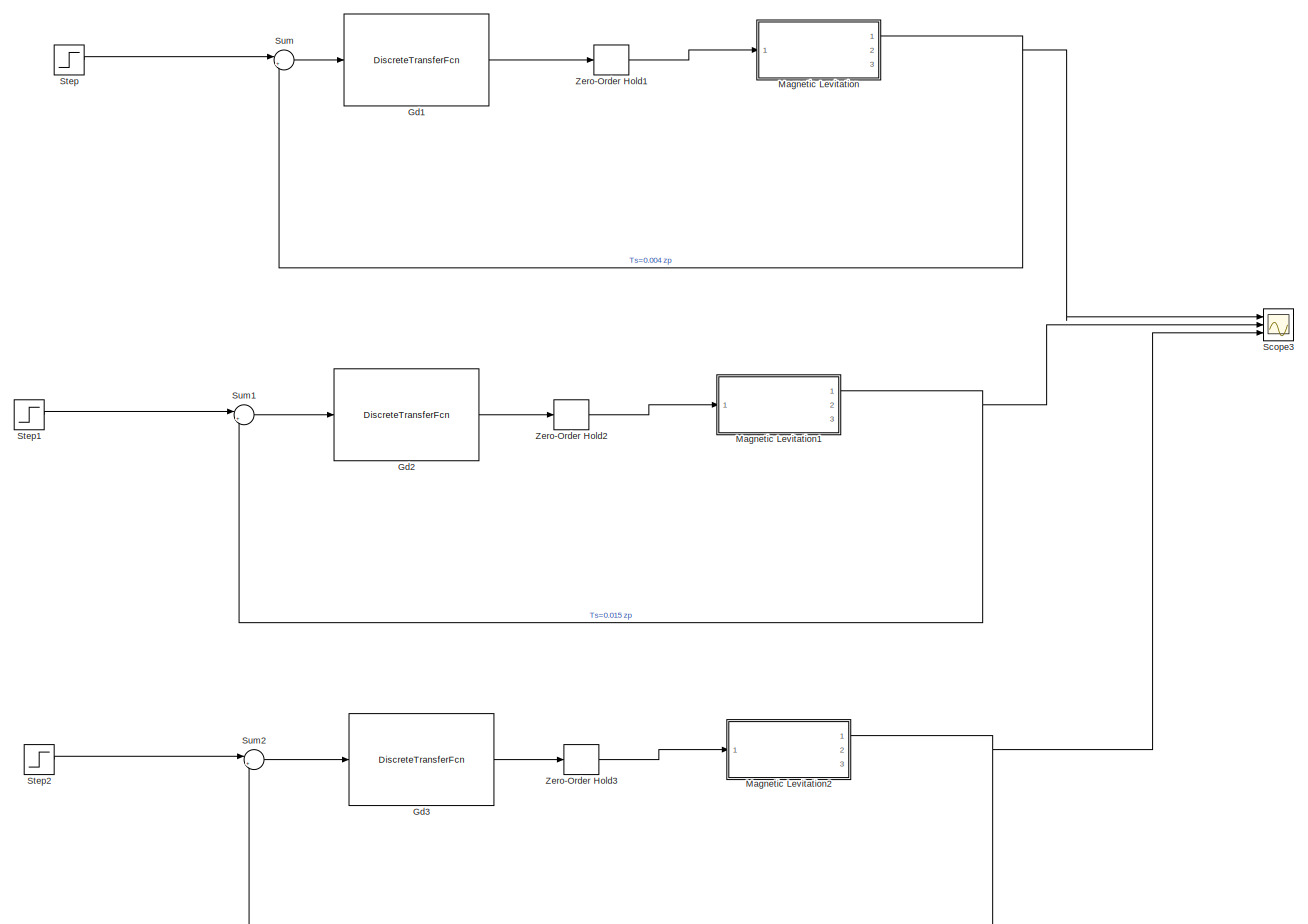
[diagram: root canvas - part 1/2, most of the canvas]
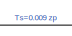
[diagram: root canvas - part 2/2, bottom center region]
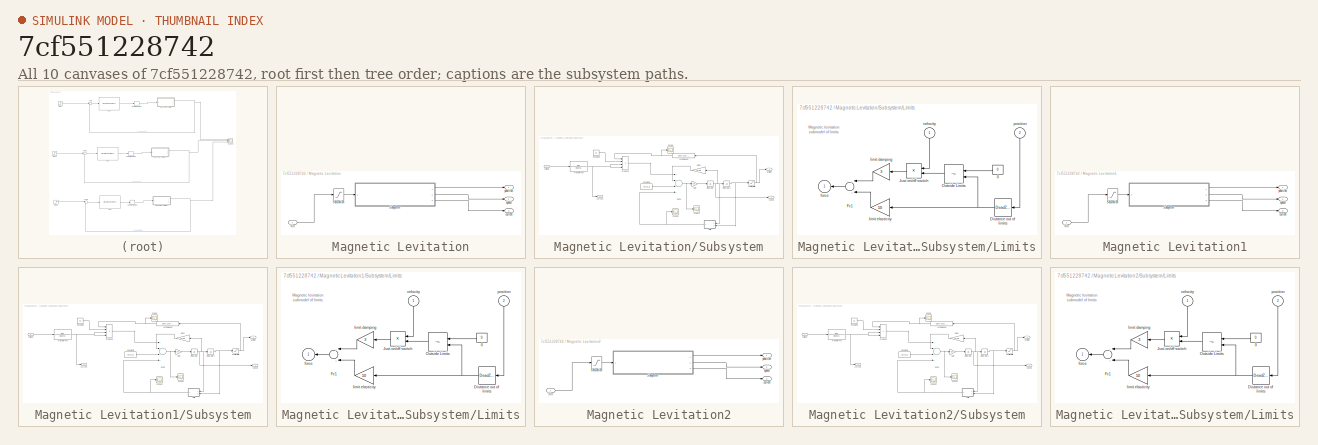
[diagram: thumbnail index - all 10 canvases of the model, root first then tree order]
MODEL slx_7cf551228742
KIND model
CONFIG AbsTol = 1e-5
CONFIG EnableMultiTasking = off
CONFIG FixedStep = 1e-3
CONFIG MaxStep = 0.001
CONFIG MinStep = auto
CONFIG RelTol = 1e-3
CONFIG SampleTimeConstraint = Unconstrained
CONFIG Solver = ode5
CONFIG SolverName = ode5
CONFIG StartTime = 0.0
CONFIG StopTime = 5
WORKSPACE source: MATLAB code (in-file)
WORKSPACE Ts = 1e-3  (= 0.001)
BLOCK [DiscreteTransferFcn]  Gd1
  Denominator = [1 -1 0.0003355]
  InputPortMap = u0
  Numerator = [5775 -1.136e04 5587]
  Ports = [1, 1]
  SampleTime = 0.004
BLOCK [DiscreteTransferFcn]  Gd2
  Denominator = [1 -1 9.358e-14]
  InputPortMap = u0
  Numerator = [1612 -3031 1424]
  Ports = [1, 1]
  SampleTime = 0.015
BLOCK [DiscreteTransferFcn]  Gd3
  Denominator = [1 -1 1.523e-08]
  InputPortMap = u0
  Numerator = [2621 -5051 2433]
  Ports = [1, 1]
  SampleTime = 0.009
BLOCK [SubSystem] Magnetic Levitation
  Ports = [1, 3]
  RequestExecContextInheritance = off
  Variant = off
BLOCK [Saturate] Magnetic Levitation/Saturation
  InputPortMap = u0
  LowerLimit = 0
  Ports = [1, 1]
  UpperLimit = 10
  ZeroCross = off
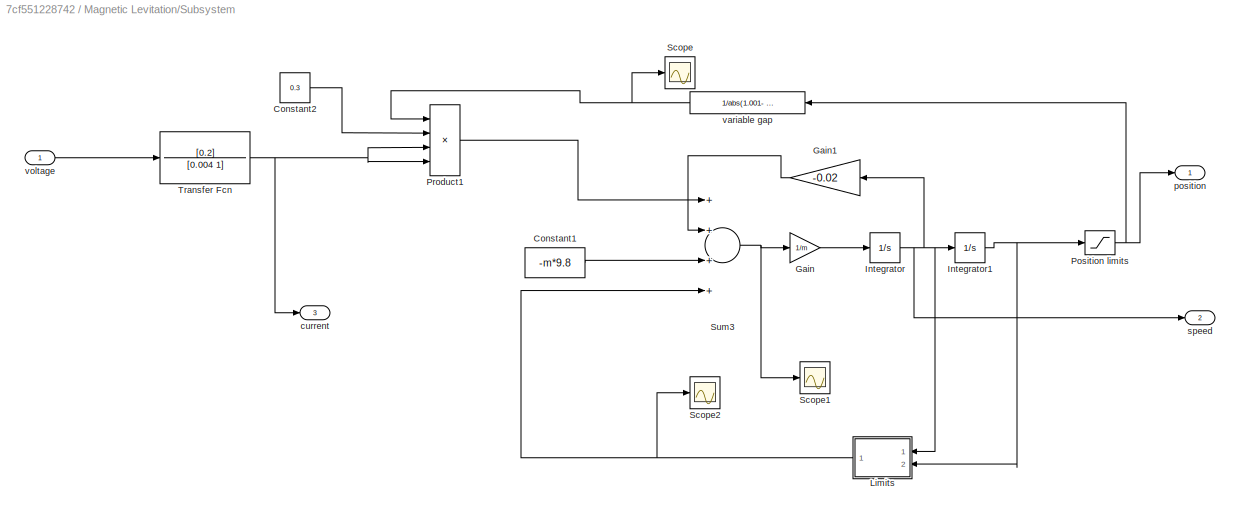
BLOCK [SubSystem] Magnetic Levitation/Subsystem
  Ports = [1, 3]
  RequestExecContextInheritance = off
  Variant = off
BLOCK [Constant] Magnetic Levitation/Subsystem/Constant1
  Value = -m*9.8
BLOCK [Constant] Magnetic Levitation/Subsystem/Constant2
  Value = 0.3
BLOCK [Gain] Magnetic Levitation/Subsystem/Gain
  Gain = 1/m
  OutDataTypeStr = Inherit: Inherit via internal rule
  ParamDataTypeStr = Inherit: Inherit via internal rule
  SaturateOnIntegerOverflow = off
BLOCK [Gain] Magnetic Levitation/Subsystem/Gain1
  Gain = -0.02
  OutDataTypeStr = Inherit: Inherit via internal rule
  ParamDataTypeStr = Inherit: Inherit via internal rule
  SaturateOnIntegerOverflow = off
BLOCK [Integrator] Magnetic Levitation/Subsystem/Integrator
  Ports = [1, 1]
BLOCK [Integrator] Magnetic Levitation/Subsystem/Integrator1
  LimitOutput = on
  LowerSaturationLimit = 0
  Ports = [1, 1]
  UpperSaturationLimit = 1
BLOCK [SubSystem] Magnetic Levitation/Subsystem/Limits
  Ports = [2, 1]
  RequestExecContextInheritance = off
  ShowPortLabels = none
  Variant = off
BLOCK [Constant] Magnetic Levitation/Subsystem/Limits/0
  Value = 0
BLOCK [DeadZone] Magnetic Levitation/Subsystem/Limits/Distance out of limits
  LowerValue = 0.002
  UpperValue = 1
  ZeroCross = off
BLOCK [Sum] Magnetic Levitation/Subsystem/Limits/Fc1
  Inputs = --
  Ports = [2, 1]
BLOCK [Product] Magnetic Levitation/Subsystem/Limits/Just on//off switch 
  Ports = [2, 1]
  RndMeth = Floor
BLOCK [RelationalOperator] Magnetic Levitation/Subsystem/Limits/Outside Limits
  Operator = ~=
  Ports = [2, 1]
BLOCK [Outport] Magnetic Levitation/Subsystem/Limits/force
  IconDisplay = Port number
BLOCK [Gain] Magnetic Levitation/Subsystem/Limits/limit damping
  Gain = 3
BLOCK [Gain] Magnetic Levitation/Subsystem/Limits/limit elasticity
  Gain = 10
BLOCK [Inport] Magnetic Levitation/Subsystem/Limits/position
  IconDisplay = Port number
  Port = 2
BLOCK [Inport] Magnetic Levitation/Subsystem/Limits/velocity
  IconDisplay = Port number
BLOCK [Saturate] Magnetic Levitation/Subsystem/Position limits
  InputPortMap = u0
  LowerLimit = 0.001
  Ports = [1, 1]
  UpperLimit = 0.998
  ZeroCross = off
BLOCK [Product] Magnetic Levitation/Subsystem/Product1
  InputSameDT = off
  Inputs = 4
  OutDataTypeStr = Inherit: Inherit via internal rule
  Ports = [4, 1]
  RndMeth = Floor
  SaturateOnIntegerOverflow = off
BLOCK [Scope] Magnetic Levitation/Subsystem/Scope
  NumInputPorts = 1
  Ports = [1]
  ScopeSpecificationString = Simulink.scopes.TimeScopeBlockCfg('CurrentConfiguration', extmgr.ConfigurationSet(extmgr.Configuration('Core','General UI',true),extmgr.Configuration('Core','Source UI',true),extmgr.Configuration('Sources','WiredSimulink',true,'DataLoggingVariableName','ScopeData1'),extmgr.Configuration('Visuals','Time Domain',true,'SerializedDisplays',{struct('MinYLimReal','-40.54054','MaxYLimReal','374.87487','Y...<+1381ch>  <repeated x3 — deduplicated; at blocks: Scope>
BLOCK [Scope] Magnetic Levitation/Subsystem/Scope1
  NumInputPorts = 1
  Ports = [1]
  ScopeSpecificationString = Simulink.scopes.TimeScopeBlockCfg('CurrentConfiguration', extmgr.ConfigurationSet(extmgr.Configuration('Core','General UI',true),extmgr.Configuration('Core','Source UI',true),extmgr.Configuration('Sources','WiredSimulink',true,'DataLoggingVariableName','ScopeData2'),extmgr.Configuration('Visuals','Time Domain',true,'SerializedDisplays',{struct('MinYLimReal','-21376391083219120442781708779858395089...<+3841ch>  <repeated x3 — deduplicated; at blocks: Scope1>
BLOCK [Scope] Magnetic Levitation/Subsystem/Scope2
  NumInputPorts = 1
  Ports = [1]
  ScopeSpecificationString = Simulink.scopes.TimeScopeBlockCfg('CurrentConfiguration', extmgr.ConfigurationSet(extmgr.Configuration('Core','General UI',true),extmgr.Configuration('Core','Source UI',true),extmgr.Configuration('Sources','WiredSimulink',true,'DataLoggingVariableName','ScopeData3'),extmgr.Configuration('Visuals','Time Domain',true,'SerializedDisplays',{struct('MinYLimReal','-0.1107','MaxYLimReal','1.19629','YLabe...<+1363ch>  <repeated x3 — deduplicated; at blocks: Scope2>
BLOCK [Sum] Magnetic Levitation/Subsystem/Sum3
  InputSameDT = off
  Inputs = ++++
  OutDataTypeStr = Inherit: Inherit via internal rule
  Ports = [4, 1]
  SaturateOnIntegerOverflow = off
BLOCK [TransferFcn] Magnetic Levitation/Subsystem/Transfer Fcn
  Denominator = [0.004 1]
  Numerator = [0.2]
BLOCK [Outport] Magnetic Levitation/Subsystem/current
  IconDisplay = Port number
  Port = 3
BLOCK [Outport] Magnetic Levitation/Subsystem/position 
  IconDisplay = Port number
BLOCK [Outport] Magnetic Levitation/Subsystem/speed
  IconDisplay = Port number
  Port = 2
BLOCK [Fcn] Magnetic Levitation/Subsystem/variable gap
  Expr = 1/abs(1.001- u)
BLOCK [Inport] Magnetic Levitation/Subsystem/voltage
  IconDisplay = Port number
BLOCK [Inport] Magnetic Levitation/Vin
  IconDisplay = Port number
BLOCK [Outport] Magnetic Levitation/current
  IconDisplay = Port number
  Port = 3
BLOCK [Outport] Magnetic Levitation/position
  IconDisplay = Port number
BLOCK [Outport] Magnetic Levitation/speed
  IconDisplay = Port number
  Port = 2
BLOCK [SubSystem] Magnetic Levitation1
  Ports = [1, 3]
  RequestExecContextInheritance = off
  Variant = off
BLOCK [Saturate] Magnetic Levitation1/Saturation
  InputPortMap = u0
  LowerLimit = 0
  Ports = [1, 1]
  UpperLimit = 10
  ZeroCross = off
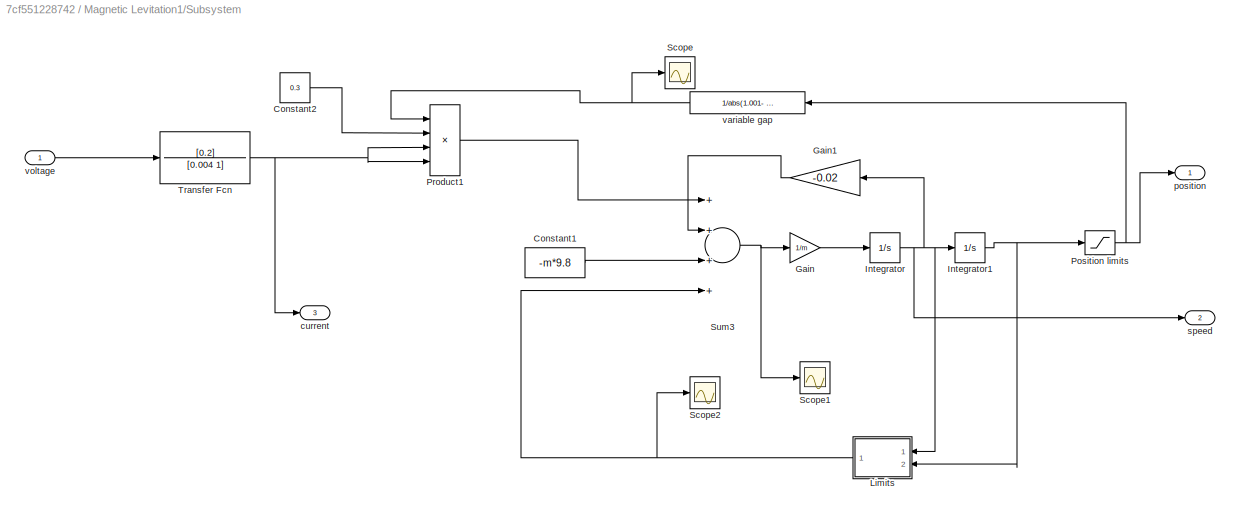
BLOCK [SubSystem] Magnetic Levitation1/Subsystem
  Ports = [1, 3]
  RequestExecContextInheritance = off
  Variant = off
BLOCK [Constant] Magnetic Levitation1/Subsystem/Constant1
  Value = -m*9.8
BLOCK [Constant] Magnetic Levitation1/Subsystem/Constant2
  Value = 0.3
BLOCK [Gain] Magnetic Levitation1/Subsystem/Gain
  Gain = 1/m
  OutDataTypeStr = Inherit: Inherit via internal rule
  ParamDataTypeStr = Inherit: Inherit via internal rule
  SaturateOnIntegerOverflow = off
BLOCK [Gain] Magnetic Levitation1/Subsystem/Gain1
  Gain = -0.02
  OutDataTypeStr = Inherit: Inherit via internal rule
  ParamDataTypeStr = Inherit: Inherit via internal rule
  SaturateOnIntegerOverflow = off
BLOCK [Integrator] Magnetic Levitation1/Subsystem/Integrator
  Ports = [1, 1]
BLOCK [Integrator] Magnetic Levitation1/Subsystem/Integrator1
  LimitOutput = on
  LowerSaturationLimit = 0
  Ports = [1, 1]
  UpperSaturationLimit = 1
BLOCK [SubSystem] Magnetic Levitation1/Subsystem/Limits
  Ports = [2, 1]
  RequestExecContextInheritance = off
  ShowPortLabels = none
  Variant = off
BLOCK [Constant] Magnetic Levitation1/Subsystem/Limits/0
  Value = 0
BLOCK [DeadZone] Magnetic Levitation1/Subsystem/Limits/Distance out of limits
  LowerValue = 0.002
  UpperValue = 1
  ZeroCross = off
BLOCK [Sum] Magnetic Levitation1/Subsystem/Limits/Fc1
  Inputs = --
  Ports = [2, 1]
BLOCK [Product] Magnetic Levitation1/Subsystem/Limits/Just on//off switch 
  Ports = [2, 1]
  RndMeth = Floor
BLOCK [RelationalOperator] Magnetic Levitation1/Subsystem/Limits/Outside Limits
  Operator = ~=
  Ports = [2, 1]
BLOCK [Outport] Magnetic Levitation1/Subsystem/Limits/force
  IconDisplay = Port number
BLOCK [Gain] Magnetic Levitation1/Subsystem/Limits/limit damping
  Gain = 3
BLOCK [Gain] Magnetic Levitation1/Subsystem/Limits/limit elasticity
  Gain = 10
BLOCK [Inport] Magnetic Levitation1/Subsystem/Limits/position
  IconDisplay = Port number
  Port = 2
BLOCK [Inport] Magnetic Levitation1/Subsystem/Limits/velocity
  IconDisplay = Port number
BLOCK [Saturate] Magnetic Levitation1/Subsystem/Position limits
  InputPortMap = u0
  LowerLimit = 0.001
  Ports = [1, 1]
  UpperLimit = 0.998
  ZeroCross = off
BLOCK [Product] Magnetic Levitation1/Subsystem/Product1
  InputSameDT = off
  Inputs = 4
  OutDataTypeStr = Inherit: Inherit via internal rule
  Ports = [4, 1]
  RndMeth = Floor
  SaturateOnIntegerOverflow = off
BLOCK [Scope] Magnetic Levitation1/Subsystem/Scope
  NumInputPorts = 1
  Ports = [1]
BLOCK [Scope] Magnetic Levitation1/Subsystem/Scope1
  NumInputPorts = 1
  Ports = [1]
BLOCK [Scope] Magnetic Levitation1/Subsystem/Scope2
  NumInputPorts = 1
  Ports = [1]
BLOCK [Sum] Magnetic Levitation1/Subsystem/Sum3
  InputSameDT = off
  Inputs = ++++
  OutDataTypeStr = Inherit: Inherit via internal rule
  Ports = [4, 1]
  SaturateOnIntegerOverflow = off
BLOCK [TransferFcn] Magnetic Levitation1/Subsystem/Transfer Fcn
  Denominator = [0.004 1]
  Numerator = [0.2]
BLOCK [Outport] Magnetic Levitation1/Subsystem/current
  IconDisplay = Port number
  Port = 3
BLOCK [Outport] Magnetic Levitation1/Subsystem/position 
  IconDisplay = Port number
BLOCK [Outport] Magnetic Levitation1/Subsystem/speed
  IconDisplay = Port number
  Port = 2
BLOCK [Fcn] Magnetic Levitation1/Subsystem/variable gap
  Expr = 1/abs(1.001- u)
BLOCK [Inport] Magnetic Levitation1/Subsystem/voltage
  IconDisplay = Port number
BLOCK [Inport] Magnetic Levitation1/Vin
  IconDisplay = Port number
BLOCK [Outport] Magnetic Levitation1/current
  IconDisplay = Port number
  Port = 3
BLOCK [Outport] Magnetic Levitation1/position
  IconDisplay = Port number
BLOCK [Outport] Magnetic Levitation1/speed
  IconDisplay = Port number
  Port = 2
BLOCK [SubSystem] Magnetic Levitation2
  Ports = [1, 3]
  RequestExecContextInheritance = off
  Variant = off
BLOCK [Saturate] Magnetic Levitation2/Saturation
  InputPortMap = u0
  LowerLimit = 0
  Ports = [1, 1]
  UpperLimit = 10
  ZeroCross = off
BLOCK [SubSystem] Magnetic Levitation2/Subsystem
  Ports = [1, 3]
  RequestExecContextInheritance = off
  Variant = off
BLOCK [Constant] Magnetic Levitation2/Subsystem/Constant1
  Value = -m*9.8
BLOCK [Constant] Magnetic Levitation2/Subsystem/Constant2
  Value = 0.3
BLOCK [Gain] Magnetic Levitation2/Subsystem/Gain
  Gain = 1/m
  OutDataTypeStr = Inherit: Inherit via internal rule
  ParamDataTypeStr = Inherit: Inherit via internal rule
  SaturateOnIntegerOverflow = off
BLOCK [Gain] Magnetic Levitation2/Subsystem/Gain1
  Gain = -0.02
  OutDataTypeStr = Inherit: Inherit via internal rule
  ParamDataTypeStr = Inherit: Inherit via internal rule
  SaturateOnIntegerOverflow = off
BLOCK [Integrator] Magnetic Levitation2/Subsystem/Integrator
  Ports = [1, 1]
BLOCK [Integrator] Magnetic Levitation2/Subsystem/Integrator1
  LimitOutput = on
  LowerSaturationLimit = 0
  Ports = [1, 1]
  UpperSaturationLimit = 1
BLOCK [SubSystem] Magnetic Levitation2/Subsystem/Limits
  Ports = [2, 1]
  RequestExecContextInheritance = off
  ShowPortLabels = none
  Variant = off
BLOCK [Constant] Magnetic Levitation2/Subsystem/Limits/0
  Value = 0
BLOCK [DeadZone] Magnetic Levitation2/Subsystem/Limits/Distance out of limits
  LowerValue = 0.002
  UpperValue = 1
  ZeroCross = off
BLOCK [Sum] Magnetic Levitation2/Subsystem/Limits/Fc1
  Inputs = --
  Ports = [2, 1]
BLOCK [Product] Magnetic Levitation2/Subsystem/Limits/Just on//off switch 
  Ports = [2, 1]
  RndMeth = Floor
BLOCK [RelationalOperator] Magnetic Levitation2/Subsystem/Limits/Outside Limits
  Operator = ~=
  Ports = [2, 1]
BLOCK [Outport] Magnetic Levitation2/Subsystem/Limits/force
  IconDisplay = Port number
BLOCK [Gain] Magnetic Levitation2/Subsystem/Limits/limit damping
  Gain = 3
BLOCK [Gain] Magnetic Levitation2/Subsystem/Limits/limit elasticity
  Gain = 10
BLOCK [Inport] Magnetic Levitation2/Subsystem/Limits/position
  IconDisplay = Port number
  Port = 2
BLOCK [Inport] Magnetic Levitation2/Subsystem/Limits/velocity
  IconDisplay = Port number
BLOCK [Saturate] Magnetic Levitation2/Subsystem/Position limits
  InputPortMap = u0
  LowerLimit = 0.001
  Ports = [1, 1]
  UpperLimit = 0.998
  ZeroCross = off
BLOCK [Product] Magnetic Levitation2/Subsystem/Product1
  InputSameDT = off
  Inputs = 4
  OutDataTypeStr = Inherit: Inherit via internal rule
  Ports = [4, 1]
  RndMeth = Floor
  SaturateOnIntegerOverflow = off
BLOCK [Scope] Magnetic Levitation2/Subsystem/Scope
  NumInputPorts = 1
  Ports = [1]
BLOCK [Scope] Magnetic Levitation2/Subsystem/Scope1
  NumInputPorts = 1
  Ports = [1]
BLOCK [Scope] Magnetic Levitation2/Subsystem/Scope2
  NumInputPorts = 1
  Ports = [1]
BLOCK [Sum] Magnetic Levitation2/Subsystem/Sum3
  InputSameDT = off
  Inputs = ++++
  OutDataTypeStr = Inherit: Inherit via internal rule
  Ports = [4, 1]
  SaturateOnIntegerOverflow = off
BLOCK [TransferFcn] Magnetic Levitation2/Subsystem/Transfer Fcn
  Denominator = [0.004 1]
  Numerator = [0.2]
BLOCK [Outport] Magnetic Levitation2/Subsystem/current
  IconDisplay = Port number
  Port = 3
BLOCK [Outport] Magnetic Levitation2/Subsystem/position 
  IconDisplay = Port number
BLOCK [Outport] Magnetic Levitation2/Subsystem/speed
  IconDisplay = Port number
  Port = 2
BLOCK [Fcn] Magnetic Levitation2/Subsystem/variable gap
  Expr = 1/abs(1.001- u)
BLOCK [Inport] Magnetic Levitation2/Subsystem/voltage
  IconDisplay = Port number
BLOCK [Inport] Magnetic Levitation2/Vin
  IconDisplay = Port number
BLOCK [Outport] Magnetic Levitation2/current
  IconDisplay = Port number
  Port = 3
BLOCK [Outport] Magnetic Levitation2/position
  IconDisplay = Port number
BLOCK [Outport] Magnetic Levitation2/speed
  IconDisplay = Port number
  Port = 2
BLOCK [Scope] Scope3
  NumInputPorts = 3
  Ports = [3]
  ScopeSpecificationString = Simulink.scopes.TimeScopeBlockCfg('CurrentConfiguration', extmgr.ConfigurationSet(extmgr.Configuration('Core','General UI',true),extmgr.Configuration('Core','Source UI',true),extmgr.Configuration('Sources','WiredSimulink',true,'DataLoggingVariableName','ScopeData4'),extmgr.Configuration('Visuals','Time Domain',true,'SerializedDisplays',{struct('MinYLimReal','-0.12362','MaxYLimReal','1.12262','YLab...<+1425ch>
BLOCK [Step] Step
  SampleTime = 0.004
  Time = yd
BLOCK [Step] Step1
  SampleTime = 0.015
  Time = yd
BLOCK [Step] Step2
  SampleTime = 0.009
  Time = yd
BLOCK [Sum] Sum
  IconShape = round
  Inputs = |+-
  Ports = [2, 1]
BLOCK [Sum] Sum1
  IconShape = round
  Inputs = |+-
  Ports = [2, 1]
BLOCK [Sum] Sum2
  IconShape = round
  Inputs = |+-
  Ports = [2, 1]
BLOCK [ZeroOrderHold] Zero-Order Hold1
  SampleTime = 0.004
BLOCK [ZeroOrderHold] Zero-Order Hold2
  SampleTime = 0.015
BLOCK [ZeroOrderHold] Zero-Order Hold3
  SampleTime = 0.009
ANNOTATION Magnetic Levitation/Subsystem/Limits: Magnetic levitation submodel of limits
ANNOTATION Magnetic Levitation1/Subsystem/Limits: Magnetic levitation submodel of limits
ANNOTATION Magnetic Levitation2/Subsystem/Limits: Magnetic levitation submodel of limits
LINE  Gd1:1 -> Zero-Order Hold1:1
LINE  Gd2:1 -> Zero-Order Hold2:1
LINE  Gd3:1 -> Zero-Order Hold3:1
LINE Magnetic Levitation/Saturation:1 -> Magnetic Levitation/Subsystem:1
LINE Magnetic Levitation/Subsystem/Constant1:1 -> Magnetic Levitation/Subsystem/Sum3:3
LINE Magnetic Levitation/Subsystem/Constant2:1 -> Magnetic Levitation/Subsystem/Product1:2
LINE Magnetic Levitation/Subsystem/Gain1:1 -> Magnetic Levitation/Subsystem/Sum3:2
LINE Magnetic Levitation/Subsystem/Gain:1 -> Magnetic Levitation/Subsystem/Integrator:1
NET Magnetic Levitation/Subsystem/Integrator1:1 -> Magnetic Levitation/Subsystem/Limits:2, Magnetic Levitation/Subsystem/Position limits:1
NET Magnetic Levitation/Subsystem/Integrator:1 -> Magnetic Levitation/Subsystem/Gain1:1, Magnetic Levitation/Subsystem/Integrator1:1, Magnetic Levitation/Subsystem/Limits:1, Magnetic Levitation/Subsystem/speed:1
LINE Magnetic Levitation/Subsystem/Limits/0:1 -> Magnetic Levitation/Subsystem/Limits/Outside Limits:1
NET Magnetic Levitation/Subsystem/Limits/Distance out of limits:1 -> Magnetic Levitation/Subsystem/Limits/Outside Limits:2, Magnetic Levitation/Subsystem/Limits/limit elasticity:1
LINE Magnetic Levitation/Subsystem/Limits/Fc1:1 -> Magnetic Levitation/Subsystem/Limits/force:1
LINE Magnetic Levitation/Subsystem/Limits/Just on//off switch :1 -> Magnetic Levitation/Subsystem/Limits/limit damping:1
LINE Magnetic Levitation/Subsystem/Limits/Outside Limits:1 -> Magnetic Levitation/Subsystem/Limits/Just on//off switch :2
LINE Magnetic Levitation/Subsystem/Limits/limit damping:1 -> Magnetic Levitation/Subsystem/Limits/Fc1:1
LINE Magnetic Levitation/Subsystem/Limits/limit elasticity:1 -> Magnetic Levitation/Subsystem/Limits/Fc1:2
LINE Magnetic Levitation/Subsystem/Limits/position:1 -> Magnetic Levitation/Subsystem/Limits/Distance out of limits:1
LINE Magnetic Levitation/Subsystem/Limits/velocity:1 -> Magnetic Levitation/Subsystem/Limits/Just on//off switch :1
NET Magnetic Levitation/Subsystem/Limits:1 -> Magnetic Levitation/Subsystem/Scope2:1, Magnetic Levitation/Subsystem/Sum3:4
NET Magnetic Levitation/Subsystem/Position limits:1 -> Magnetic Levitation/Subsystem/position :1, Magnetic Levitation/Subsystem/variable gap:1
LINE Magnetic Levitation/Subsystem/Product1:1 -> Magnetic Levitation/Subsystem/Sum3:1
NET Magnetic Levitation/Subsystem/Sum3:1 -> Magnetic Levitation/Subsystem/Gain:1, Magnetic Levitation/Subsystem/Scope1:1
NET Magnetic Levitation/Subsystem/Transfer Fcn:1 -> Magnetic Levitation/Subsystem/Product1:3, Magnetic Levitation/Subsystem/Product1:4, Magnetic Levitation/Subsystem/current:1
NET Magnetic Levitation/Subsystem/variable gap:1 -> Magnetic Levitation/Subsystem/Product1:1, Magnetic Levitation/Subsystem/Scope:1
LINE Magnetic Levitation/Subsystem/voltage:1 -> Magnetic Levitation/Subsystem/Transfer Fcn:1
LINE Magnetic Levitation/Subsystem:1 -> Magnetic Levitation/position:1
LINE Magnetic Levitation/Subsystem:2 -> Magnetic Levitation/speed:1
LINE Magnetic Levitation/Subsystem:3 -> Magnetic Levitation/current:1
LINE Magnetic Levitation/Vin:1 -> Magnetic Levitation/Saturation:1
LINE Magnetic Levitation1/Saturation:1 -> Magnetic Levitation1/Subsystem:1
LINE Magnetic Levitation1/Subsystem/Constant1:1 -> Magnetic Levitation1/Subsystem/Sum3:3
LINE Magnetic Levitation1/Subsystem/Constant2:1 -> Magnetic Levitation1/Subsystem/Product1:2
LINE Magnetic Levitation1/Subsystem/Gain1:1 -> Magnetic Levitation1/Subsystem/Sum3:2
LINE Magnetic Levitation1/Subsystem/Gain:1 -> Magnetic Levitation1/Subsystem/Integrator:1
NET Magnetic Levitation1/Subsystem/Integrator1:1 -> Magnetic Levitation1/Subsystem/Limits:2, Magnetic Levitation1/Subsystem/Position limits:1
NET Magnetic Levitation1/Subsystem/Integrator:1 -> Magnetic Levitation1/Subsystem/Gain1:1, Magnetic Levitation1/Subsystem/Integrator1:1, Magnetic Levitation1/Subsystem/Limits:1, Magnetic Levitation1/Subsystem/speed:1
LINE Magnetic Levitation1/Subsystem/Limits/0:1 -> Magnetic Levitation1/Subsystem/Limits/Outside Limits:1
NET Magnetic Levitation1/Subsystem/Limits/Distance out of limits:1 -> Magnetic Levitation1/Subsystem/Limits/Outside Limits:2, Magnetic Levitation1/Subsystem/Limits/limit elasticity:1
LINE Magnetic Levitation1/Subsystem/Limits/Fc1:1 -> Magnetic Levitation1/Subsystem/Limits/force:1
LINE Magnetic Levitation1/Subsystem/Limits/Just on//off switch :1 -> Magnetic Levitation1/Subsystem/Limits/limit damping:1
LINE Magnetic Levitation1/Subsystem/Limits/Outside Limits:1 -> Magnetic Levitation1/Subsystem/Limits/Just on//off switch :2
LINE Magnetic Levitation1/Subsystem/Limits/limit damping:1 -> Magnetic Levitation1/Subsystem/Limits/Fc1:1
LINE Magnetic Levitation1/Subsystem/Limits/limit elasticity:1 -> Magnetic Levitation1/Subsystem/Limits/Fc1:2
LINE Magnetic Levitation1/Subsystem/Limits/position:1 -> Magnetic Levitation1/Subsystem/Limits/Distance out of limits:1
LINE Magnetic Levitation1/Subsystem/Limits/velocity:1 -> Magnetic Levitation1/Subsystem/Limits/Just on//off switch :1
NET Magnetic Levitation1/Subsystem/Limits:1 -> Magnetic Levitation1/Subsystem/Scope2:1, Magnetic Levitation1/Subsystem/Sum3:4
NET Magnetic Levitation1/Subsystem/Position limits:1 -> Magnetic Levitation1/Subsystem/position :1, Magnetic Levitation1/Subsystem/variable gap:1
LINE Magnetic Levitation1/Subsystem/Product1:1 -> Magnetic Levitation1/Subsystem/Sum3:1
NET Magnetic Levitation1/Subsystem/Sum3:1 -> Magnetic Levitation1/Subsystem/Gain:1, Magnetic Levitation1/Subsystem/Scope1:1
NET Magnetic Levitation1/Subsystem/Transfer Fcn:1 -> Magnetic Levitation1/Subsystem/Product1:3, Magnetic Levitation1/Subsystem/Product1:4, Magnetic Levitation1/Subsystem/current:1
NET Magnetic Levitation1/Subsystem/variable gap:1 -> Magnetic Levitation1/Subsystem/Product1:1, Magnetic Levitation1/Subsystem/Scope:1
LINE Magnetic Levitation1/Subsystem/voltage:1 -> Magnetic Levitation1/Subsystem/Transfer Fcn:1
LINE Magnetic Levitation1/Subsystem:1 -> Magnetic Levitation1/position:1
LINE Magnetic Levitation1/Subsystem:2 -> Magnetic Levitation1/speed:1
LINE Magnetic Levitation1/Subsystem:3 -> Magnetic Levitation1/current:1
LINE Magnetic Levitation1/Vin:1 -> Magnetic Levitation1/Saturation:1
NET Magnetic Levitation1:1 -> Scope3:2, Sum1:2
LINE Magnetic Levitation2/Saturation:1 -> Magnetic Levitation2/Subsystem:1
LINE Magnetic Levitation2/Subsystem/Constant1:1 -> Magnetic Levitation2/Subsystem/Sum3:3
LINE Magnetic Levitation2/Subsystem/Constant2:1 -> Magnetic Levitation2/Subsystem/Product1:2
LINE Magnetic Levitation2/Subsystem/Gain1:1 -> Magnetic Levitation2/Subsystem/Sum3:2
LINE Magnetic Levitation2/Subsystem/Gain:1 -> Magnetic Levitation2/Subsystem/Integrator:1
NET Magnetic Levitation2/Subsystem/Integrator1:1 -> Magnetic Levitation2/Subsystem/Limits:2, Magnetic Levitation2/Subsystem/Position limits:1
NET Magnetic Levitation2/Subsystem/Integrator:1 -> Magnetic Levitation2/Subsystem/Gain1:1, Magnetic Levitation2/Subsystem/Integrator1:1, Magnetic Levitation2/Subsystem/Limits:1, Magnetic Levitation2/Subsystem/speed:1
LINE Magnetic Levitation2/Subsystem/Limits/0:1 -> Magnetic Levitation2/Subsystem/Limits/Outside Limits:1
NET Magnetic Levitation2/Subsystem/Limits/Distance out of limits:1 -> Magnetic Levitation2/Subsystem/Limits/Outside Limits:2, Magnetic Levitation2/Subsystem/Limits/limit elasticity:1
LINE Magnetic Levitation2/Subsystem/Limits/Fc1:1 -> Magnetic Levitation2/Subsystem/Limits/force:1
LINE Magnetic Levitation2/Subsystem/Limits/Just on//off switch :1 -> Magnetic Levitation2/Subsystem/Limits/limit damping:1
LINE Magnetic Levitation2/Subsystem/Limits/Outside Limits:1 -> Magnetic Levitation2/Subsystem/Limits/Just on//off switch :2
LINE Magnetic Levitation2/Subsystem/Limits/limit damping:1 -> Magnetic Levitation2/Subsystem/Limits/Fc1:1
LINE Magnetic Levitation2/Subsystem/Limits/limit elasticity:1 -> Magnetic Levitation2/Subsystem/Limits/Fc1:2
LINE Magnetic Levitation2/Subsystem/Limits/position:1 -> Magnetic Levitation2/Subsystem/Limits/Distance out of limits:1
LINE Magnetic Levitation2/Subsystem/Limits/velocity:1 -> Magnetic Levitation2/Subsystem/Limits/Just on//off switch :1
NET Magnetic Levitation2/Subsystem/Limits:1 -> Magnetic Levitation2/Subsystem/Scope2:1, Magnetic Levitation2/Subsystem/Sum3:4
NET Magnetic Levitation2/Subsystem/Position limits:1 -> Magnetic Levitation2/Subsystem/position :1, Magnetic Levitation2/Subsystem/variable gap:1
LINE Magnetic Levitation2/Subsystem/Product1:1 -> Magnetic Levitation2/Subsystem/Sum3:1
NET Magnetic Levitation2/Subsystem/Sum3:1 -> Magnetic Levitation2/Subsystem/Gain:1, Magnetic Levitation2/Subsystem/Scope1:1
NET Magnetic Levitation2/Subsystem/Transfer Fcn:1 -> Magnetic Levitation2/Subsystem/Product1:3, Magnetic Levitation2/Subsystem/Product1:4, Magnetic Levitation2/Subsystem/current:1
NET Magnetic Levitation2/Subsystem/variable gap:1 -> Magnetic Levitation2/Subsystem/Product1:1, Magnetic Levitation2/Subsystem/Scope:1
LINE Magnetic Levitation2/Subsystem/voltage:1 -> Magnetic Levitation2/Subsystem/Transfer Fcn:1
LINE Magnetic Levitation2/Subsystem:1 -> Magnetic Levitation2/position:1
LINE Magnetic Levitation2/Subsystem:2 -> Magnetic Levitation2/speed:1
LINE Magnetic Levitation2/Subsystem:3 -> Magnetic Levitation2/current:1
LINE Magnetic Levitation2/Vin:1 -> Magnetic Levitation2/Saturation:1
NET Magnetic Levitation2:1 -> Scope3:3, Sum2:2
NET Magnetic Levitation:1 -> Scope3:1, Sum:2
LINE Step1:1 -> Sum1:1
LINE Step2:1 -> Sum2:1
LINE Step:1 -> Sum:1
LINE Sum1:1 ->  Gd2:1
LINE Sum2:1 ->  Gd3:1
LINE Sum:1 ->  Gd1:1
LINE Zero-Order Hold1:1 -> Magnetic Levitation:1
LINE Zero-Order Hold2:1 -> Magnetic Levitation1:1
LINE Zero-Order Hold3:1 -> Magnetic Levitation2:1
note: NET lines group one-source signal fan-out (src -> all destinations, sorted); 1:1 wires keep LINE
